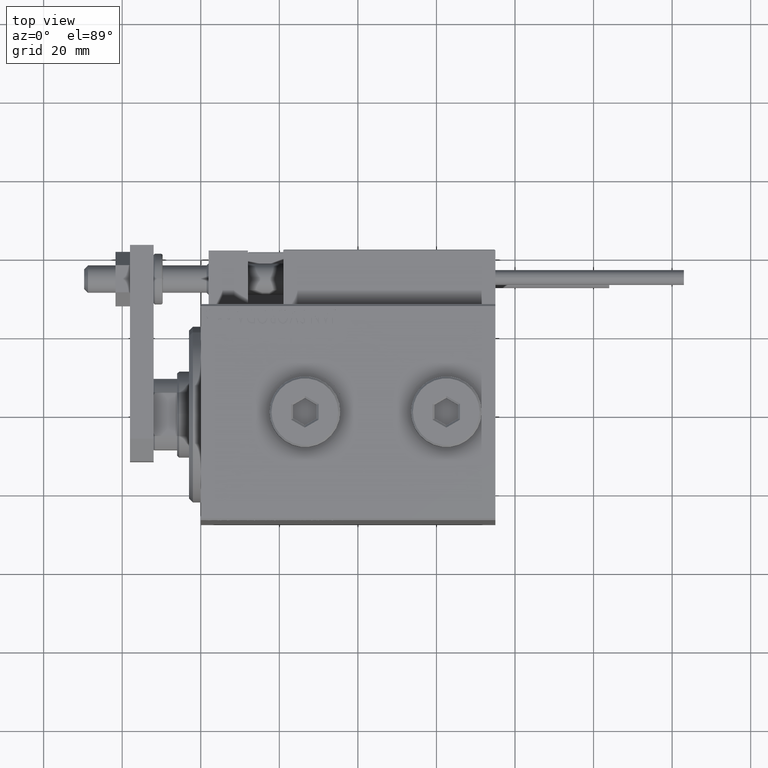
[diagram: clean part render]
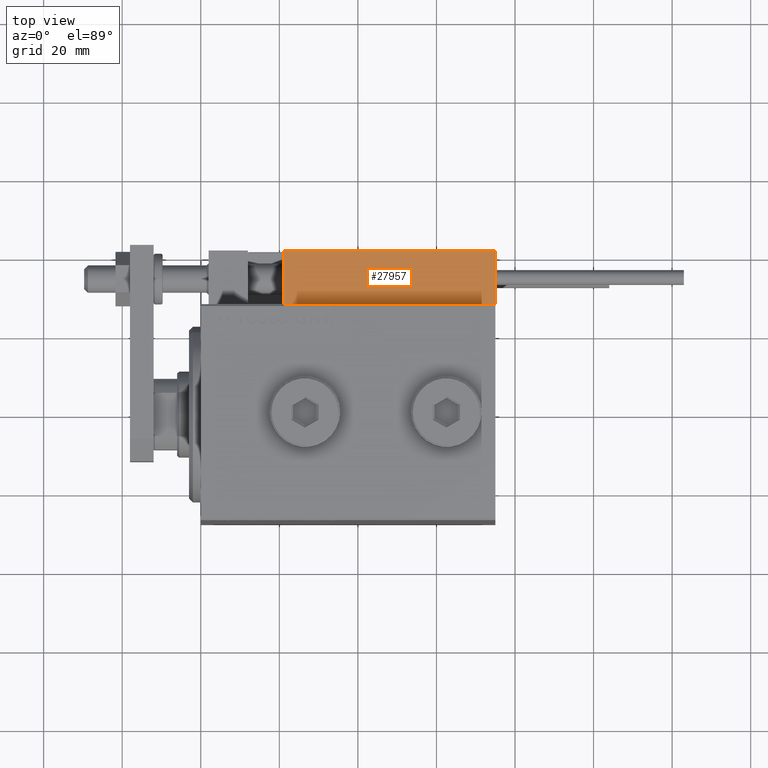
[diagram: same view with one face highlighted and labeled with its STEP entity id]
A machine part, top view. The second image highlights one B-rep face of the part: STEP entity #27957.
In plain terms, the highlighted planar face has unit normal (-0, -0, -1).
Its self-contained STEP definition (entity closure, byte-faithful):
#761 = CARTESIAN_POINT ( 'NONE',  ( -26.99999999999993605, 20.00000000000002132, 0.000000000000000000 ) ) ;
#1747 = DIRECTION ( 'NONE',  ( 1.000000000000000000, -6.424901762877063495E-17, -0.000000000000000000 ) ) ;
#2165 = LINE ( 'NONE', #37601, #37440 ) ;
#5442 = VERTEX_POINT ( 'NONE', #22317 ) ;
#6960 = DIRECTION ( 'NONE',  ( -0.000000000000000000, -0.000000000000000000, -1.000000000000000000 ) ) ;
#12315 = EDGE_LOOP ( 'NONE', ( #17941, #16355, #21134, #41171 ) ) ;
#13454 = PLANE ( 'NONE',  #17771 ) ;
#15790 = CARTESIAN_POINT ( 'NONE',  ( 27.00000000000006395, 20.00000000000001776, 14.00000000000000000 ) ) ;
#16355 = ORIENTED_EDGE ( 'NONE', *, *, #35735, .T. ) ;
#16790 = CARTESIAN_POINT ( 'NONE',  ( -26.99999999999993605, 20.00000000000002132, 13.70000000000000107 ) ) ;
#17771 = AXIS2_PLACEMENT_3D ( 'NONE', #45506, #18145, #29345 ) ;
#17941 = ORIENTED_EDGE ( 'NONE', *, *, #49691, .F. ) ;
#18145 = DIRECTION ( 'NONE',  ( -6.424901762877063495E-17, -1.000000000000000000, 0.000000000000000000 ) ) ;
#18324 = DIRECTION ( 'NONE',  ( -0.000000000000000000, -0.000000000000000000, -1.000000000000000000 ) ) ;
#19132 = EDGE_CURVE ( 'NONE', #20146, #5442, #35600, .T. ) ;
#20146 = VERTEX_POINT ( 'NONE', #46526 ) ;
#21134 = ORIENTED_EDGE ( 'NONE', *, *, #19132, .T. ) ;
#22095 = VECTOR ( 'NONE', #1747, 1000.000000000000000 ) ;
#22317 = CARTESIAN_POINT ( 'NONE',  ( 27.00000000000006395, 20.00000000000001776, 0.000000000000000000 ) ) ;
#25188 = FACE_OUTER_BOUND ( 'NONE', #12315, .T. ) ;
#25453 = LINE ( 'NONE', #37706, #22095 ) ;
#27957 = ADVANCED_FACE ( 'NONE', ( #25188 ), #13454, .F. ) ;
#28550 = VECTOR ( 'NONE', #6960, 1000.000000000000000 ) ;
#29345 = DIRECTION ( 'NONE',  ( 1.000000000000000000, -6.424901762877063495E-17, 0.000000000000000000 ) ) ;
#31526 = LINE ( 'NONE', #32054, #44686 ) ;
#32054 = CARTESIAN_POINT ( 'NONE',  ( 27.00000000000006395, 20.00000000000001776, 0.000000000000000000 ) ) ;
#35600 = LINE ( 'NONE', #15790, #28550 ) ;
#35735 = EDGE_CURVE ( 'NONE', #43604, #20146, #25453, .T. ) ;
#37440 = VECTOR ( 'NONE', #18324, 1000.000000000000000 ) ;
#37601 = CARTESIAN_POINT ( 'NONE',  ( -26.99999999999993605, 20.00000000000002132, 14.00000000000000000 ) ) ;
#37706 = CARTESIAN_POINT ( 'NONE',  ( 27.00000000000006395, 20.00000000000001776, 13.70000000000000107 ) ) ;
#39786 = EDGE_CURVE ( 'NONE', #5442, #51175, #31526, .T. ) ;
#41171 = ORIENTED_EDGE ( 'NONE', *, *, #39786, .T. ) ;
#43266 = DIRECTION ( 'NONE',  ( -1.000000000000000000, 6.424901762877062263E-17, 0.000000000000000000 ) ) ;
#43604 = VERTEX_POINT ( 'NONE', #16790 ) ;
#44686 = VECTOR ( 'NONE', #43266, 1000.000000000000000 ) ;
#45506 = CARTESIAN_POINT ( 'NONE',  ( 27.00000000000006395, 20.00000000000001776, 14.00000000000000000 ) ) ;
#46526 = CARTESIAN_POINT ( 'NONE',  ( 27.00000000000006395, 20.00000000000001776, 13.70000000000000107 ) ) ;
#49691 = EDGE_CURVE ( 'NONE', #43604, #51175, #2165, .T. ) ;
#51175 = VERTEX_POINT ( 'NONE', #761 ) ;